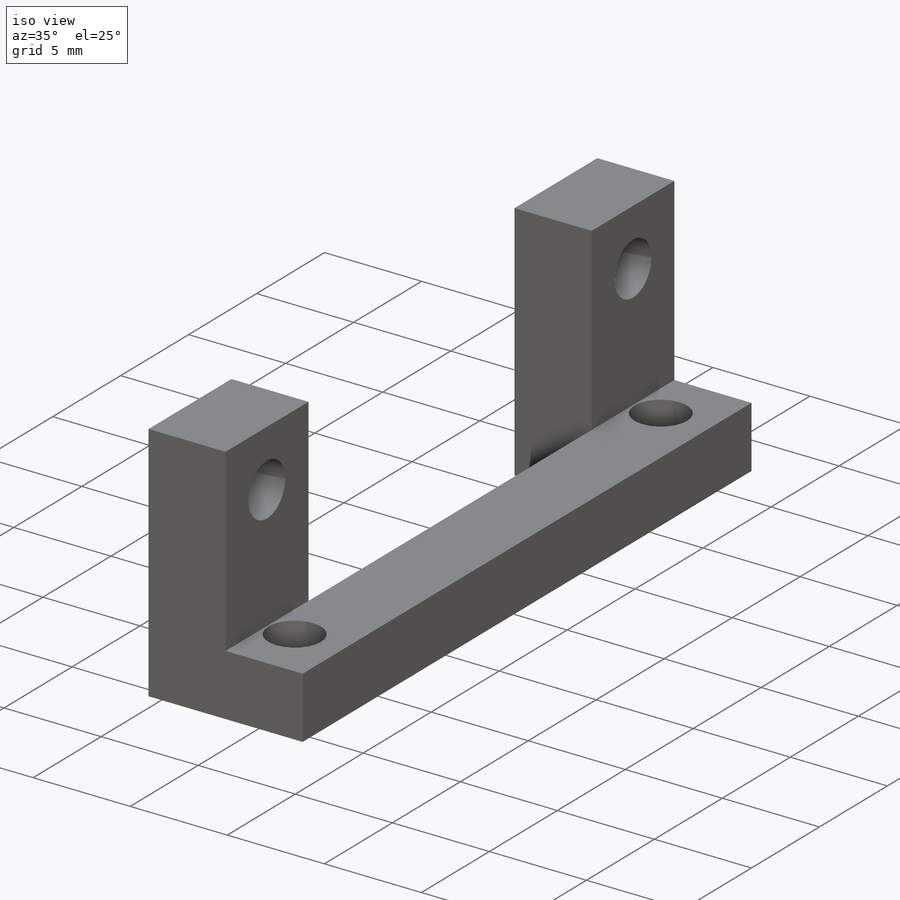
[diagram: iso view]
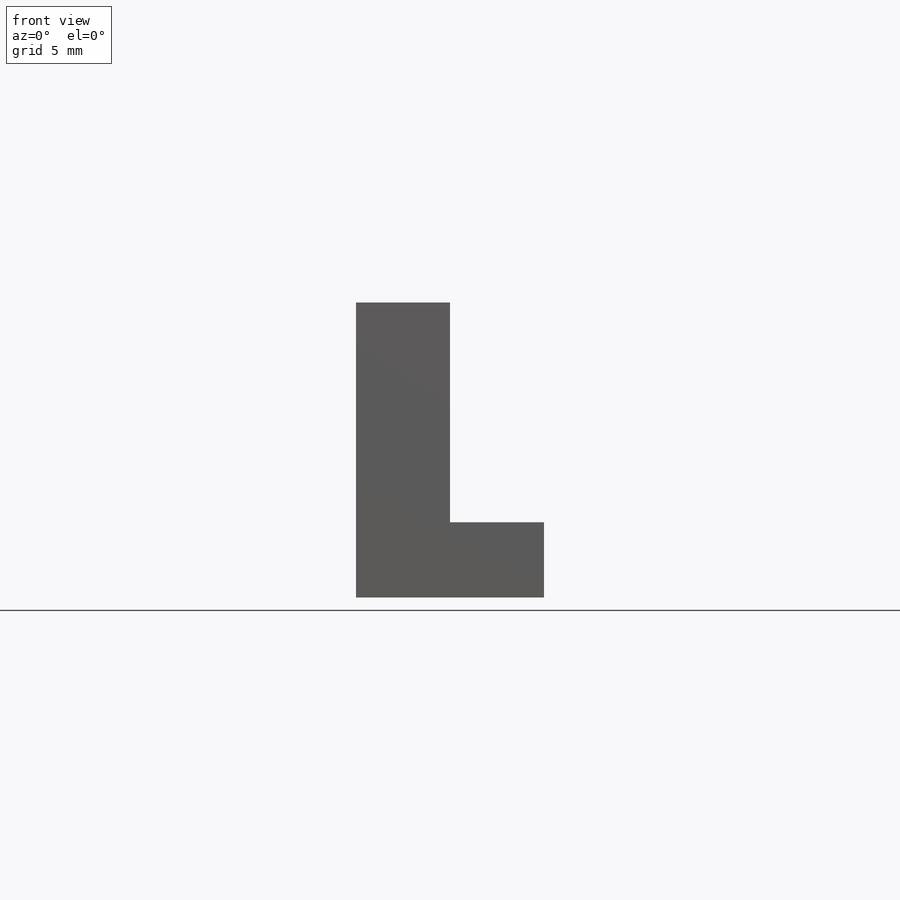
[diagram: front view]
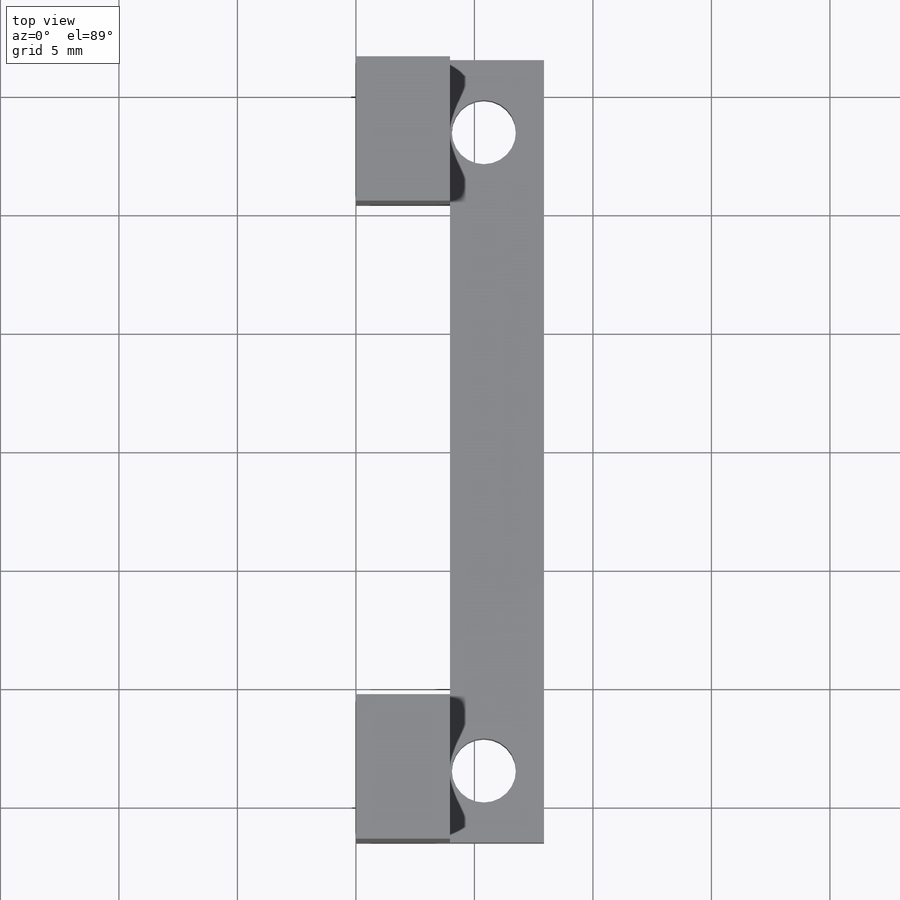
[diagram: top view]
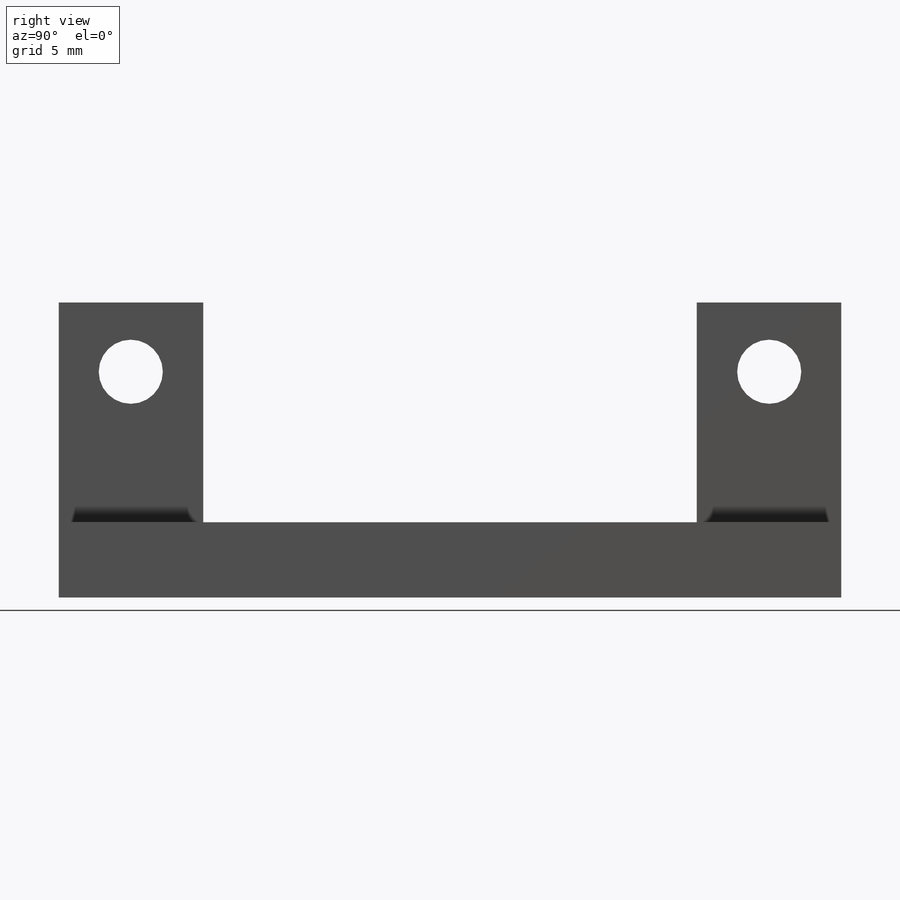
[diagram: right view]
SOLIDWORKS PART (.sldprt)
format: sldprt  version: not decoded by parser v0  size: 227,840 bytes
history: native  units: mm
features: sketch x6, hole x2, material x1, extrude x1, cut_extrude x1 (+13 scaffold rows collapsed)
feature tree (24):
  scaffold x13  (default folders/planes/origin — collapsed)
  material  "6061 Alloy"
  sketch  "Sketch1"  dims[D1=12.446mm D2=7.9375mm D3=~3.96875mm D4=3.175mm]
  extrude  "Boss-Extrude1"  Depth=33.02mm
  sketch  "Sketch2"  dims[D1=20.828mm D2=10.414mm]
  cut_extrude  "Cut-Extrude1"  [1 undecoded]
  hole  "#6-32 Tapped Hole1"  Diameter=2.7051mm Depth=3.96875mm
  sketch  "Sketch4"  dims[D1=9.525mm D2=19.05mm D3=19.05mm]
  sketch  "Sketch3"  dims[hole-wizard template sketch: 60 standard entries collapsed; hole parameters kept: c18.Thru Tap Drill Depth=~3.96875mm]
  hole  "#6-32 Tapped Hole2"  Diameter=2.7051mm Depth=3.175mm
  sketch  "Sketch6"  dims[D1=2.54mm D2=19.05mm D3=19.05mm]
  sketch  "Sketch5"  dims[hole-wizard template sketch: 60 standard entries collapsed; hole parameters kept: c18.Thru Tap Drill Depth=3.175mm]
decode coverage: 9 of 10 modeling features carry decoded parameters
note: ~ marks probable driven/reference dimensions
note: 1 parameter value undecoded
note: suppression state not decoded; provenance and decode notes live in map.json
